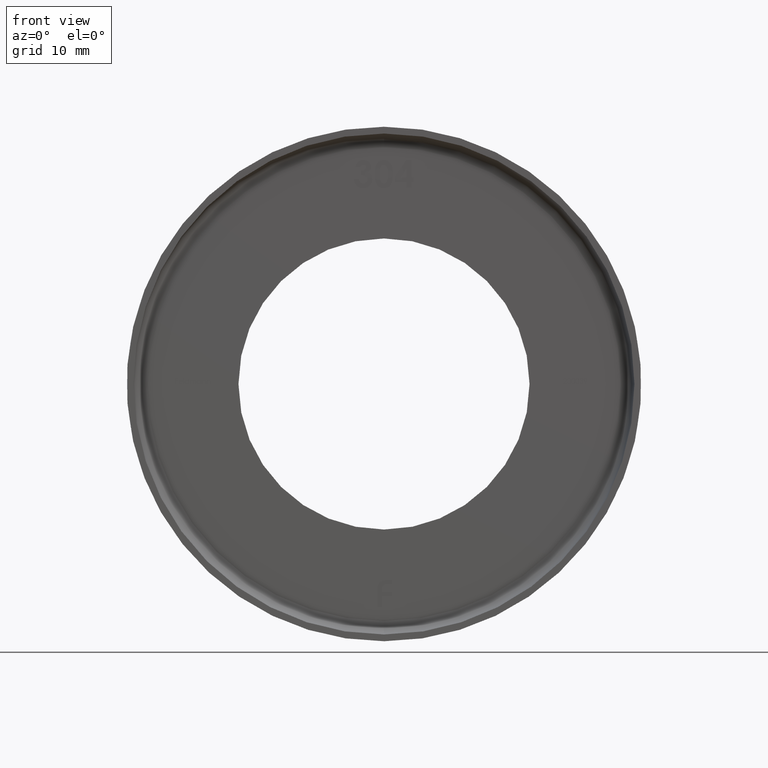
[diagram: clean part render]
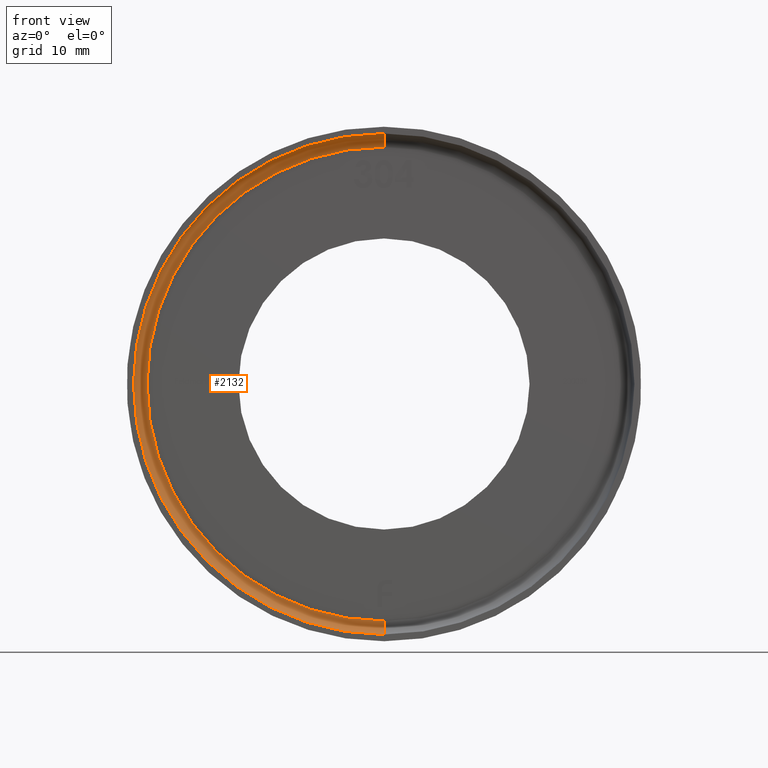
[diagram: same view with one face highlighted and labeled with its STEP entity id]
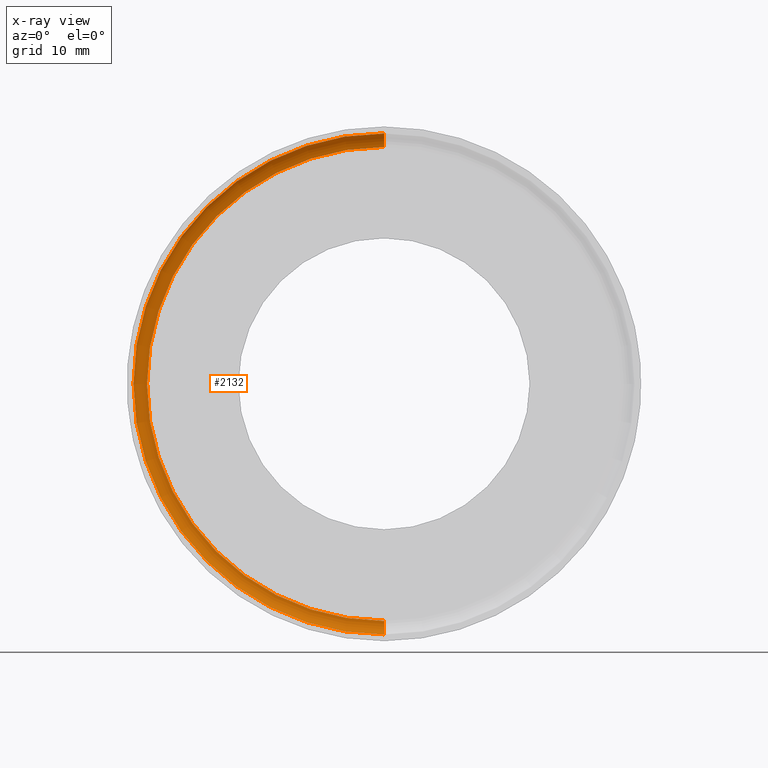
[diagram: x-ray of the same camera — body ghosted, the highlighted face saturated]
A machine part, front view. The second image highlights one B-rep face of the part: STEP entity #2132.
The next image is the same camera in x-ray: the body ghosted, the highlighted face saturated — about 0% of this face is hidden behind the body in this view.
In plain terms, the highlighted toroidal blend (fillet) surface has major radius 35 mm and minor (blend) radius 2 mm.
Its self-contained STEP definition (entity closure, byte-faithful):
#70 = TOROIDAL_SURFACE ( 'NONE', #10475, 35.00000000000000000, 2.000000000000000000 ) ;
#1213 = FACE_OUTER_BOUND ( 'NONE', #8222, .T. ) ;
#1225 = CARTESIAN_POINT ( 'NONE',  ( 4.408728476930472433E-15, 11.00000000000000178, 35.00000000000000000 ) ) ;
#1571 = CARTESIAN_POINT ( 'NONE',  ( 0.000000000000000000, 9.000000000000001776, -37.00000000000000711 ) ) ;
#1736 = CIRCLE ( 'NONE', #4806, 2.000000000000001776 ) ;
#1912 = AXIS2_PLACEMENT_3D ( 'NONE', #3980, #7459, #12340 ) ;
#2014 = DIRECTION ( 'NONE',  ( -0.000000000000000000, -1.000000000000000000, -0.000000000000000000 ) ) ;
#2132 = ADVANCED_FACE ( 'NONE', ( #1213 ), #70, .F. ) ;
#2444 = AXIS2_PLACEMENT_3D ( 'NONE', #12151, #7225, #7273 ) ;
#2491 = DIRECTION ( 'NONE',  ( 0.000000000000000000, 0.000000000000000000, 1.000000000000000000 ) ) ;
#3007 = EDGE_CURVE ( 'NONE', #7177, #10805, #5718, .T. ) ;
#3591 = CARTESIAN_POINT ( 'NONE',  ( 0.000000000000000000, 11.00000000000000178, 0.000000000000000000 ) ) ;
#3709 = ORIENTED_EDGE ( 'NONE', *, *, #3007, .T. ) ;
#3980 = CARTESIAN_POINT ( 'NONE',  ( 4.286263797015736496E-15, 9.000000000000001776, 35.00000000000000000 ) ) ;
#4806 = AXIS2_PLACEMENT_3D ( 'NONE', #11962, #4948, #2491 ) ;
#4948 = DIRECTION ( 'NONE',  ( -1.000000000000000000, 0.000000000000000000, 0.000000000000000000 ) ) ;
#5613 = CARTESIAN_POINT ( 'NONE',  ( 0.000000000000000000, 11.00000000000000178, -35.00000000000000000 ) ) ;
#5718 = CIRCLE ( 'NONE', #2444, 37.00000000000000711 ) ;
#5785 = VERTEX_POINT ( 'NONE', #1225 ) ;
#5830 = DIRECTION ( 'NONE',  ( -0.000000000000000000, -1.000000000000000000, -0.000000000000000000 ) ) ;
#6560 = ORIENTED_EDGE ( 'NONE', *, *, #6890, .F. ) ;
#6890 = EDGE_CURVE ( 'NONE', #5785, #11057, #12698, .T. ) ;
#7116 = ORIENTED_EDGE ( 'NONE', *, *, #13414, .T. ) ;
#7177 = VERTEX_POINT ( 'NONE', #11480 ) ;
#7225 = DIRECTION ( 'NONE',  ( -0.000000000000000000, -1.000000000000000000, -0.000000000000000000 ) ) ;
#7273 = DIRECTION ( 'NONE',  ( 0.000000000000000000, 0.000000000000000000, -1.000000000000000000 ) ) ;
#7459 = DIRECTION ( 'NONE',  ( 1.000000000000000000, 0.000000000000000000, -1.224646799147353207E-16 ) ) ;
#8082 = CARTESIAN_POINT ( 'NONE',  ( 0.000000000000000000, 9.000000000000001776, 0.000000000000000000 ) ) ;
#8222 = EDGE_LOOP ( 'NONE', ( #6560, #7116, #3709, #8395 ) ) ;
#8395 = ORIENTED_EDGE ( 'NONE', *, *, #14448, .F. ) ;
#10183 = CIRCLE ( 'NONE', #1912, 2.000000000000001776 ) ;
#10475 = AXIS2_PLACEMENT_3D ( 'NONE', #8082, #2014, #12800 ) ;
#10805 = VERTEX_POINT ( 'NONE', #1571 ) ;
#11057 = VERTEX_POINT ( 'NONE', #5613 ) ;
#11480 = CARTESIAN_POINT ( 'NONE',  ( 4.531193156845207581E-15, 9.000000000000001776, 37.00000000000000711 ) ) ;
#11962 = CARTESIAN_POINT ( 'NONE',  ( 0.000000000000000000, 9.000000000000001776, -35.00000000000000000 ) ) ;
#12151 = CARTESIAN_POINT ( 'NONE',  ( 0.000000000000000000, 9.000000000000001776, 0.000000000000000000 ) ) ;
#12340 = DIRECTION ( 'NONE',  ( -1.224646799147353454E-16, 0.000000000000000000, -1.000000000000000000 ) ) ;
#12698 = CIRCLE ( 'NONE', #13713, 35.00000000000000000 ) ;
#12800 = DIRECTION ( 'NONE',  ( 0.000000000000000000, 0.000000000000000000, -1.000000000000000000 ) ) ;
#13414 = EDGE_CURVE ( 'NONE', #5785, #7177, #10183, .T. ) ;
#13713 = AXIS2_PLACEMENT_3D ( 'NONE', #3591, #5830, #14205 ) ;
#14205 = DIRECTION ( 'NONE',  ( 0.000000000000000000, 0.000000000000000000, -1.000000000000000000 ) ) ;
#14448 = EDGE_CURVE ( 'NONE', #11057, #10805, #1736, .T. ) ;